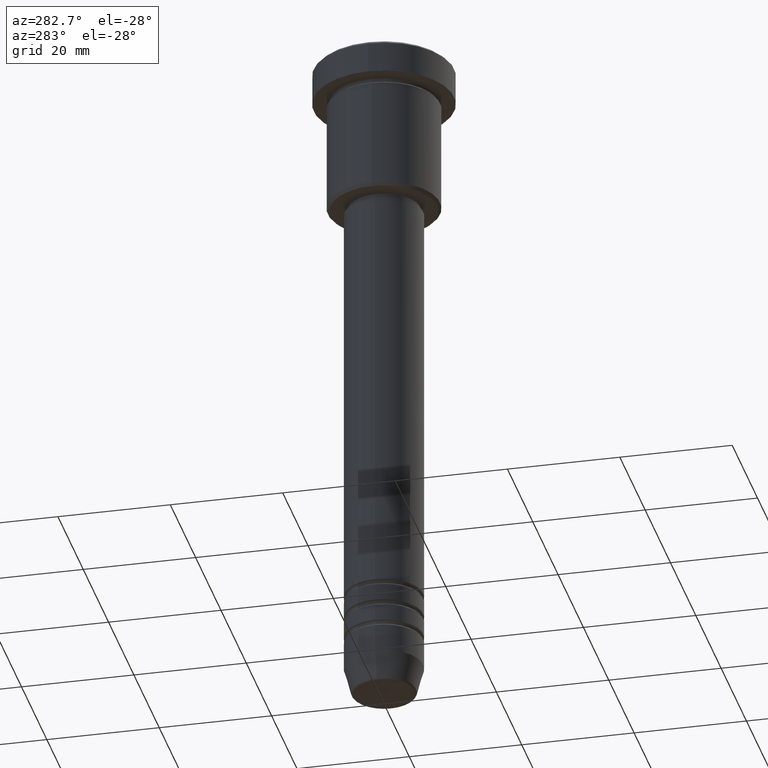
[diagram: clean part render]
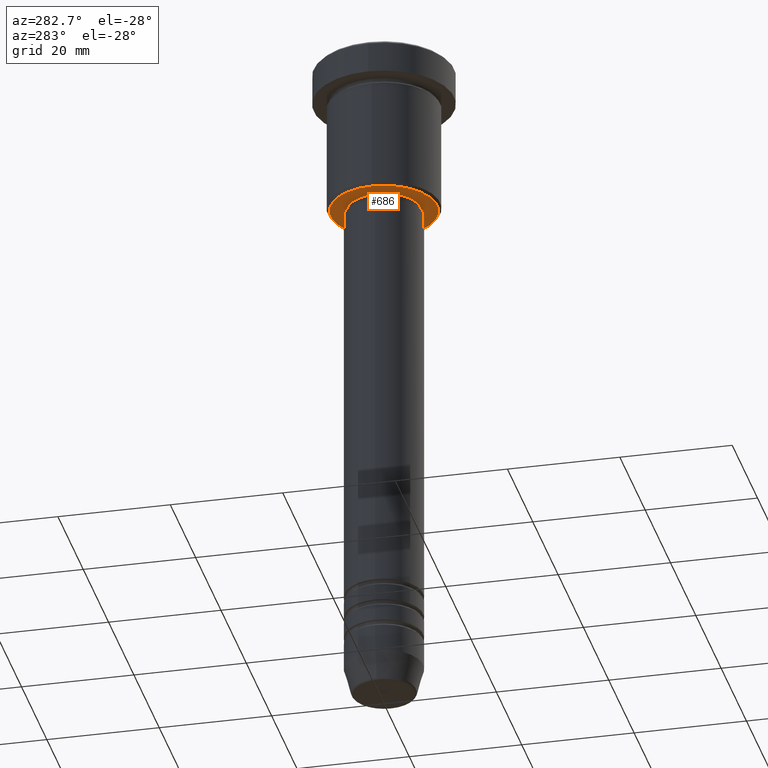
[diagram: same view with one face highlighted and labeled with its STEP entity id]
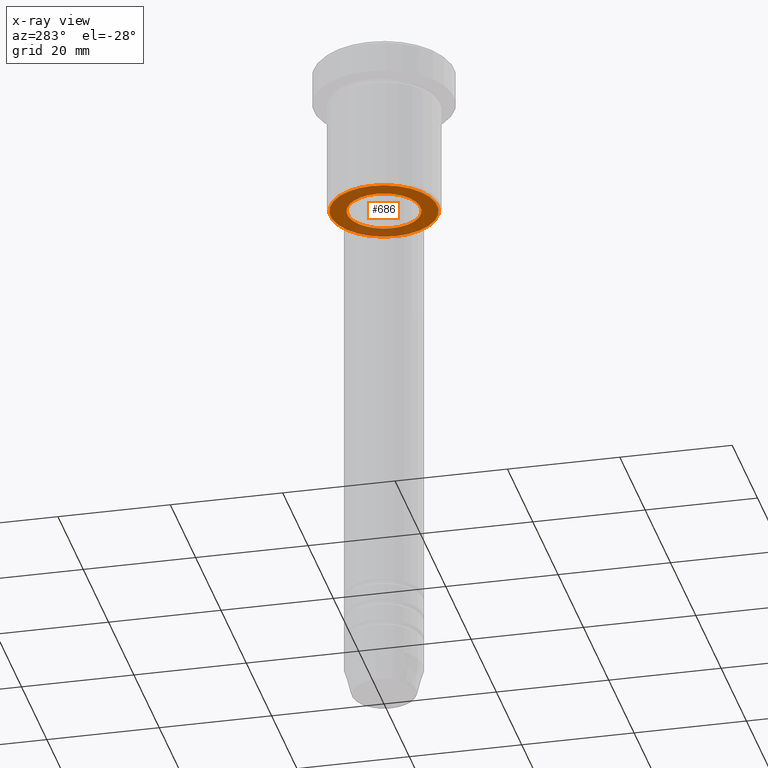
[diagram: x-ray of the same camera — body ghosted, the highlighted face saturated]
A machine part, auxiliary view. The second image highlights one B-rep face of the part: STEP entity #686.
The next image is the same camera in x-ray: the body ghosted, the highlighted face saturated — about 21% of this face is hidden behind the body in this view.
In plain terms, the highlighted planar face has unit normal (0, 0, -1).
Its self-contained STEP definition (entity closure, byte-faithful):
#2 = DIRECTION ( 'NONE',  ( 0.000000000000000000, 0.000000000000000000, -1.000000000000000000 ) ) ;
#11 = DIRECTION ( 'NONE',  ( 1.000000000000000000, 0.000000000000000000, 0.000000000000000000 ) ) ;
#27 = AXIS2_PLACEMENT_3D ( 'NONE', #1177, #1006, #634 ) ;
#74 = EDGE_CURVE ( 'NONE', #794, #813, #887, .T. ) ;
#91 = DIRECTION ( 'NONE',  ( 0.000000000000000000, 0.000000000000000000, -1.000000000000000000 ) ) ;
#99 = DIRECTION ( 'NONE',  ( -1.000000000000000000, 0.000000000000000000, -0.000000000000000000 ) ) ;
#160 = VERTEX_POINT ( 'NONE', #874 ) ;
#198 = CARTESIAN_POINT ( 'NONE',  ( 0.000000000000000000, 0.000000000000000000, -27.00000000000001066 ) ) ;
#219 = AXIS2_PLACEMENT_3D ( 'NONE', #458, #91, #447 ) ;
#255 = CARTESIAN_POINT ( 'NONE',  ( 0.000000000000000000, 0.000000000000000000, -27.00000000000000711 ) ) ;
#372 = EDGE_LOOP ( 'NONE', ( #461, #553 ) ) ;
#377 = CARTESIAN_POINT ( 'NONE',  ( -9.499999999999966249, 1.194030629168667300E-15, -27.00000000000000711 ) ) ;
#405 = DIRECTION ( 'NONE',  ( 0.000000000000000000, 0.000000000000000000, -1.000000000000000000 ) ) ;
#444 = AXIS2_PLACEMENT_3D ( 'NONE', #916, #2, #99 ) ;
#447 = DIRECTION ( 'NONE',  ( -1.000000000000000000, 0.000000000000000000, 0.000000000000000000 ) ) ;
#451 = FACE_OUTER_BOUND ( 'NONE', #654, .T. ) ;
#458 = CARTESIAN_POINT ( 'NONE',  ( 0.000000000000000000, 0.000000000000000000, -27.00000000000000711 ) ) ;
#461 = ORIENTED_EDGE ( 'NONE', *, *, #658, .T. ) ;
#498 = AXIS2_PLACEMENT_3D ( 'NONE', #198, #667, #11 ) ;
#530 = FACE_BOUND ( 'NONE', #372, .T. ) ;
#553 = ORIENTED_EDGE ( 'NONE', *, *, #74, .T. ) ;
#630 = EDGE_CURVE ( 'NONE', #160, #720, #820, .T. ) ;
#634 = DIRECTION ( 'NONE',  ( 1.000000000000000000, 0.000000000000000000, 0.000000000000000000 ) ) ;
#648 = ORIENTED_EDGE ( 'NONE', *, *, #866, .T. ) ;
#654 = EDGE_LOOP ( 'NONE', ( #985, #648 ) ) ;
#658 = EDGE_CURVE ( 'NONE', #813, #794, #962, .T. ) ;
#667 = DIRECTION ( 'NONE',  ( -0.000000000000000000, -0.000000000000000000, 1.000000000000000000 ) ) ;
#668 = CARTESIAN_POINT ( 'NONE',  ( 6.500000000000000000, 0.000000000000000000, -27.00000000000001066 ) ) ;
#673 = CARTESIAN_POINT ( 'NONE',  ( -6.500000000000000000, 7.960204194457795477E-16, -27.00000000000001066 ) ) ;
#682 = CIRCLE ( 'NONE', #835, 9.499999999999966249 ) ;
#686 = ADVANCED_FACE ( 'NONE', ( #451, #530 ), #826, .T. ) ;
#689 = DIRECTION ( 'NONE',  ( -1.000000000000000000, 0.000000000000000000, 0.000000000000000000 ) ) ;
#720 = VERTEX_POINT ( 'NONE', #377 ) ;
#794 = VERTEX_POINT ( 'NONE', #673 ) ;
#813 = VERTEX_POINT ( 'NONE', #668 ) ;
#820 = CIRCLE ( 'NONE', #219, 9.499999999999966249 ) ;
#826 = PLANE ( 'NONE',  #444 ) ;
#835 = AXIS2_PLACEMENT_3D ( 'NONE', #255, #405, #689 ) ;
#866 = EDGE_CURVE ( 'NONE', #720, #160, #682, .T. ) ;
#874 = CARTESIAN_POINT ( 'NONE',  ( 9.499999999999966249, 0.000000000000000000, -27.00000000000000711 ) ) ;
#887 = CIRCLE ( 'NONE', #498, 6.500000000000000000 ) ;
#916 = CARTESIAN_POINT ( 'NONE',  ( 0.000000000000000000, 10.00000000000000000, -27.00000000000000711 ) ) ;
#962 = CIRCLE ( 'NONE', #27, 6.500000000000000000 ) ;
#985 = ORIENTED_EDGE ( 'NONE', *, *, #630, .T. ) ;
#1006 = DIRECTION ( 'NONE',  ( -0.000000000000000000, -0.000000000000000000, 1.000000000000000000 ) ) ;
#1177 = CARTESIAN_POINT ( 'NONE',  ( 0.000000000000000000, 0.000000000000000000, -27.00000000000001066 ) ) ;